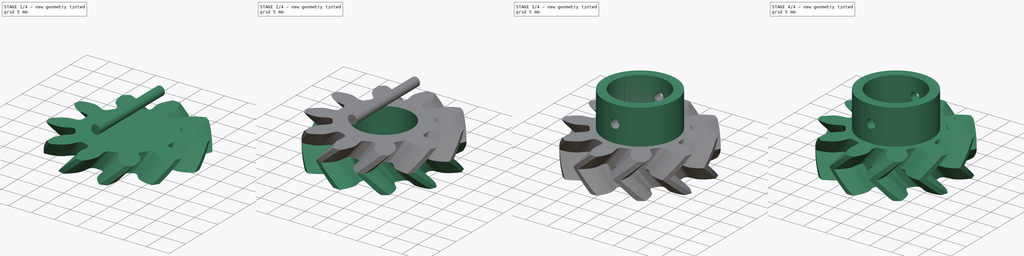
[diagram: build sequence overview — one tinted view per stage of 4, left to right]
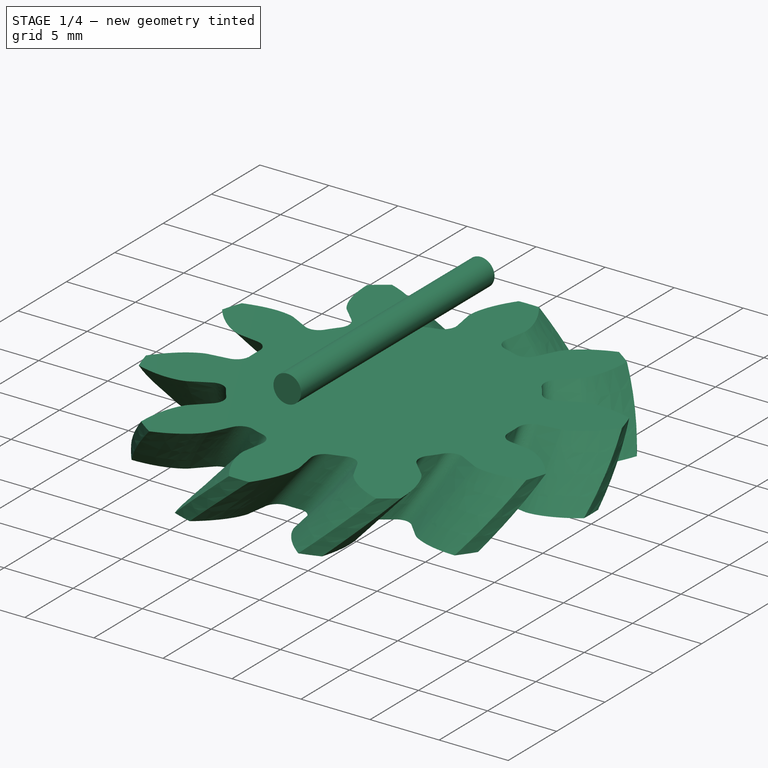
[diagram: stage 1 of 4 — iso view after this stage's code; geometry added in this stage tinted green]
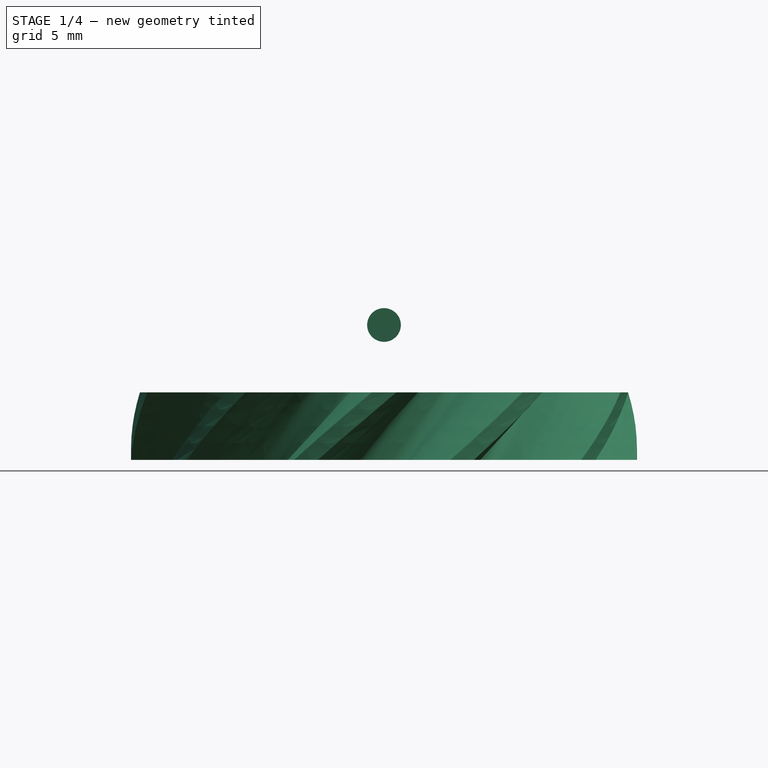
[diagram: stage 1 of 4 — front view after this stage's code; geometry added in this stage tinted green]
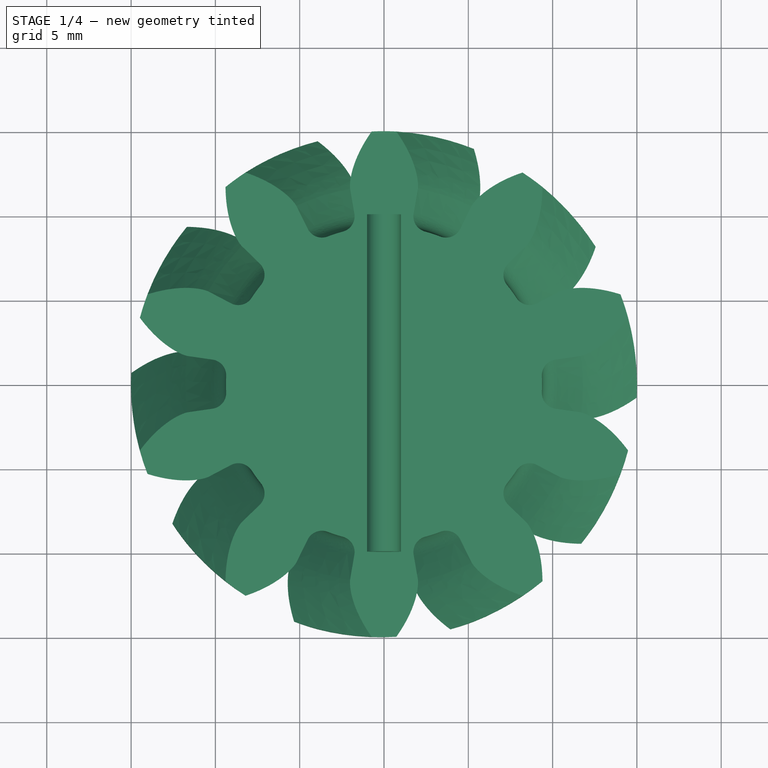
[diagram: stage 1 of 4 — top view after this stage's code; geometry added in this stage tinted green]
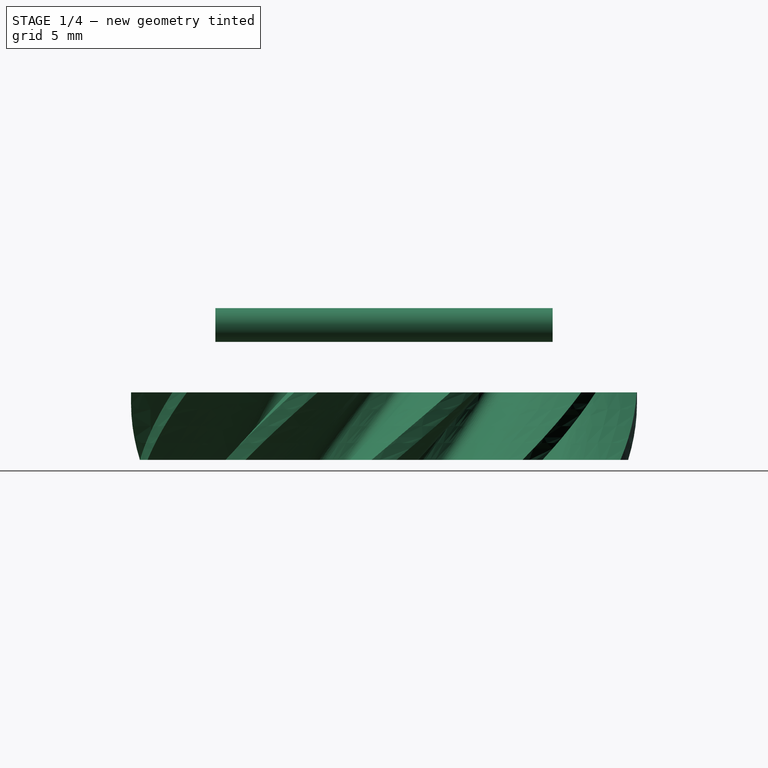
[diagram: stage 1 of 4 — right view after this stage's code; geometry added in this stage tinted green]
FCSTD DOCUMENT  (FreeCAD 0.16R6703 (Git))
Label: Chevron Gear Rotor 1mm 10th
License: FreeArt
LicenseURL: http://artlibre.org/licence/lal
objects: Part::Part2DObjectPython×5, Sketcher::SketchObject×4, Part::Cut×3, PartDesign::Pocket×2, PartDesign::Pad×2, Part::Loft×1, Part::Mirroring×1, Part::MultiFuse×1, Drawing::FeatureViewPart×1, Drawing::FeatureViewAnnotation×1, Drawing::FeaturePage×1
note: 23 computed .brp shape members not serialized (recipe doc carries the construction recipe); baked Part::Feature solids carry a one-line shape summary decoded from their .brp

FEATURE [Part::Part2DObjectPython] InvoluteGear  # Draft 2D object (typed FeaturePython)
  ExternalGear = true
  HighPrecision = true
  Modules = 2.5
  NumberOfTeeth = 10
  PressureAngle = 20
FEATURE [Part::Part2DObjectPython] Clone2D  label="Clone of InvoluteGear (2D)"  # Draft 2D object (typed FeaturePython)
  Objects = -> [InvoluteGear]
  Placement = pos=(0,0,1) rot=(0,0,1;0.07854rad)
  Scale = (1,1,1)
FEATURE [Part::Part2DObjectPython] Clone2D001  label="Clone of InvoluteGear (2D)001"  # Draft 2D object (typed FeaturePython)
  Objects = -> [InvoluteGear]
  Placement = pos=(0,0,2) rot=(0,0,1;0.15708rad)
  Scale = (1,1,1)
FEATURE [Part::Part2DObjectPython] Clone2D002  label="Clone of InvoluteGear (2D)002"  # Draft 2D object (typed FeaturePython)
  Objects = -> [InvoluteGear]
  Placement = pos=(0,0,3) rot=(0,0,1;0.235619rad)
  Scale = (1,1,1)
FEATURE [Part::Part2DObjectPython] Clone2D003  label="Clone of InvoluteGear (2D)003"  # Draft 2D object (typed FeaturePython)
  Objects = -> [InvoluteGear]
  Placement = pos=(0,0,4) rot=(0,0,1;0.314159rad)
  Scale = (1,1,1)
FEATURE [Part::Loft] Loft
  Closed = false
  Ruled = false
  Sections = -> [InvoluteGear,Clone2D,Clone2D001,Clone2D002,Clone2D003]
  Solid = true
FEATURE [Sketcher::SketchObject] Sketch003
  Placement = pos=(0,0,0) rot=(1,0,0;1.5708rad)
  sketch-geometry (1):
    g0: Circle CenterX=0 CenterY=8 CenterZ=0 NormalX=0 NormalY=0 NormalZ=1 Radius=1
  constraints (3):
    c: PointOnObject(g0,g-2)
    c: DistanceY(g-1,g0) = 8
    c: Radius(g0) = 1
FEATURE [PartDesign::Pad] Pad001
  Length = 20
  Length2 = 100
  Midplane = true
  Placement = pos=(0,0,0) rot=(1,0,0;1.5708rad)
  Sketch = -> Sketch003
  Type = 0
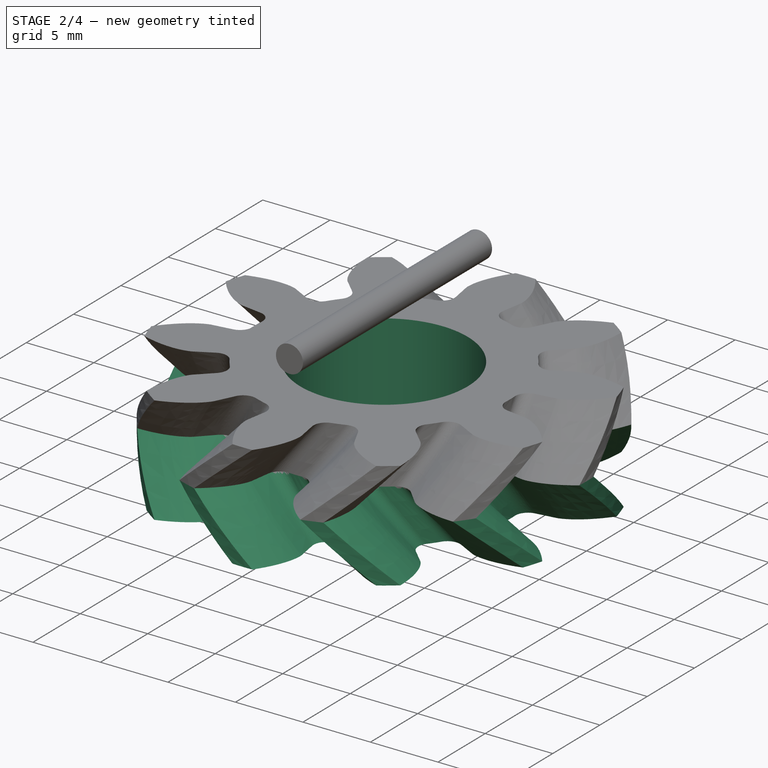
[diagram: stage 2 of 4 — iso view after this stage's code; geometry added in this stage tinted green]
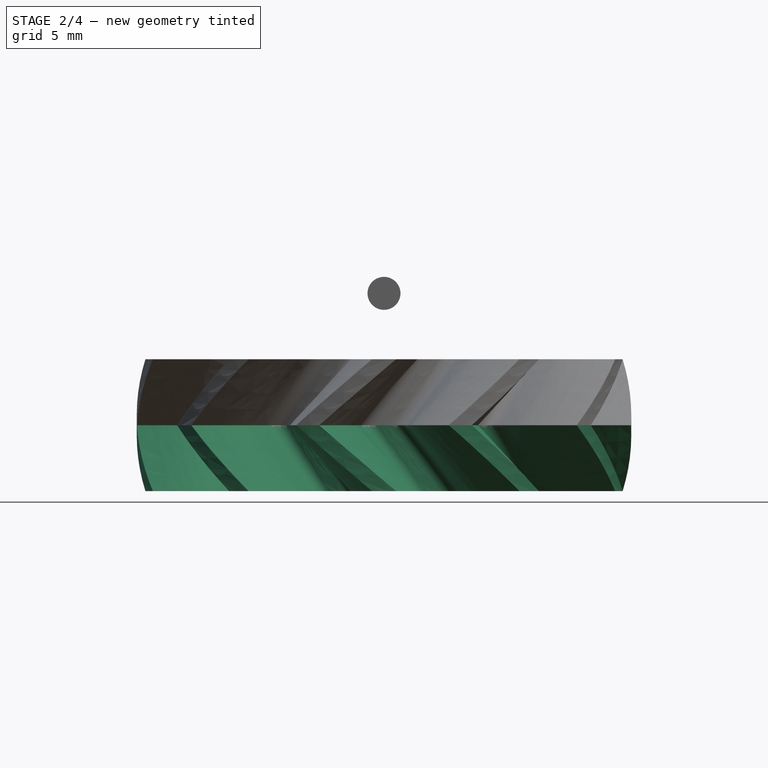
[diagram: stage 2 of 4 — front view after this stage's code; geometry added in this stage tinted green]
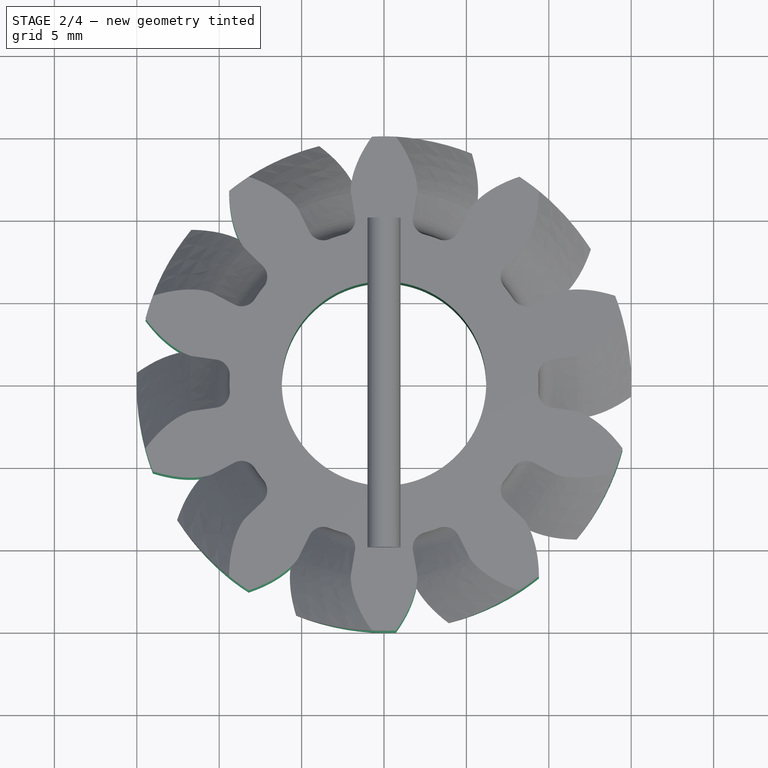
[diagram: stage 2 of 4 — top view after this stage's code; geometry added in this stage tinted green]
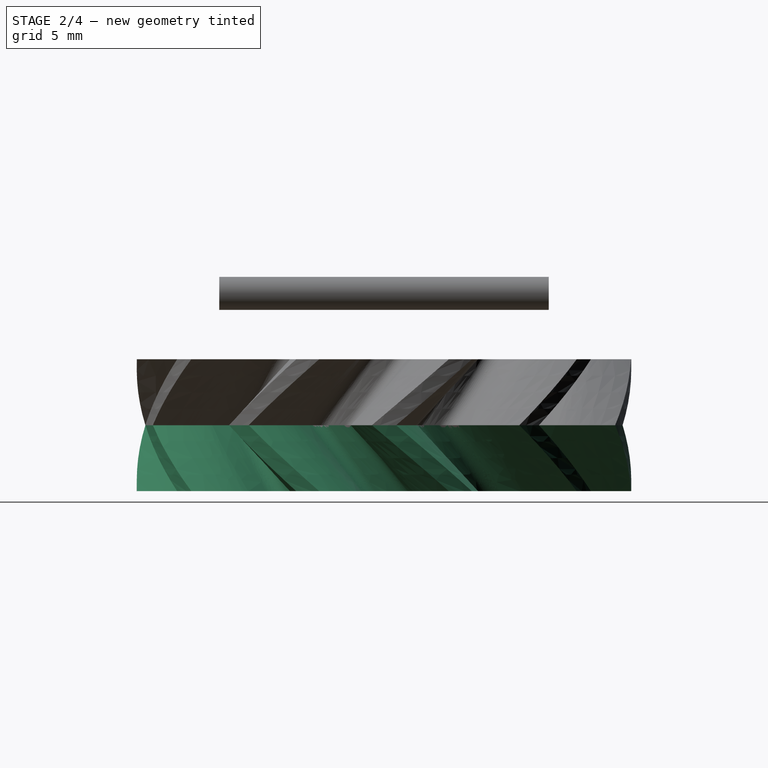
[diagram: stage 2 of 4 — right view after this stage's code; geometry added in this stage tinted green]
FEATURE [Part::Mirroring] Part__Mirroring  label="Loft (Mirror #1)"
  Base = (0,0,0)
  Normal = (0,0,1)
  Source = -> Loft
FEATURE [Part::MultiFuse] Fusion
  Shapes = -> [Part__Mirroring,Loft]
FEATURE [Sketcher::SketchObject] Sketch
  Placement = pos=(0,0,8) rot=(0,0,1;0rad)
  Support = -> Fusion [Face162]
  sketch-geometry (1):
    g0: Circle CenterX=0 CenterY=0 CenterZ=0 NormalX=0 NormalY=0 NormalZ=1 Radius=6.2
  constraints (2):
    c: Coincident(g0,g-1)
    c: Radius(g0) = 6.2
FEATURE [PartDesign::Pocket] Pocket
  Length = 16
  Sketch = -> Sketch
  Type = 0
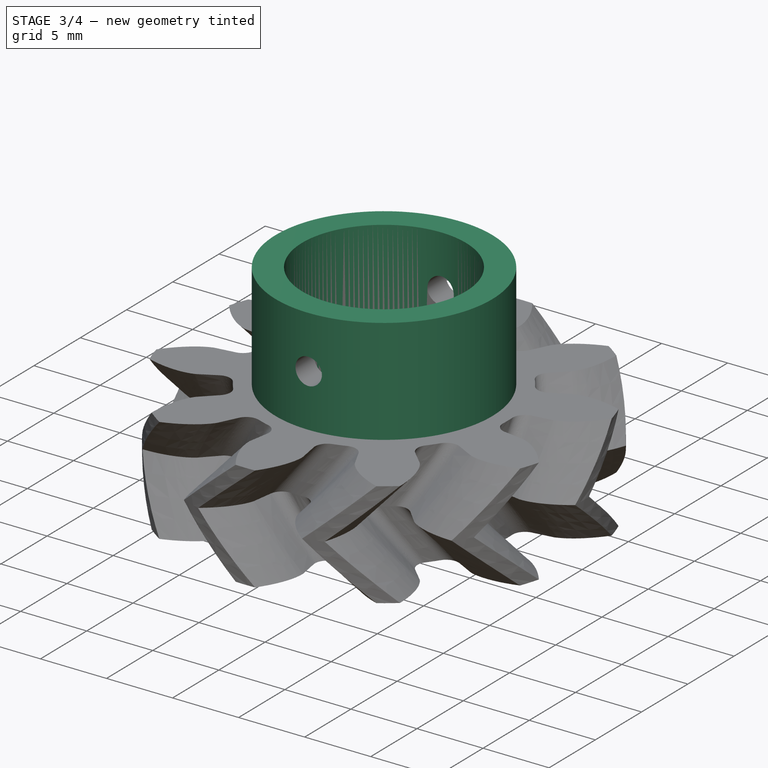
[diagram: stage 3 of 4 — iso view after this stage's code; geometry added in this stage tinted green]
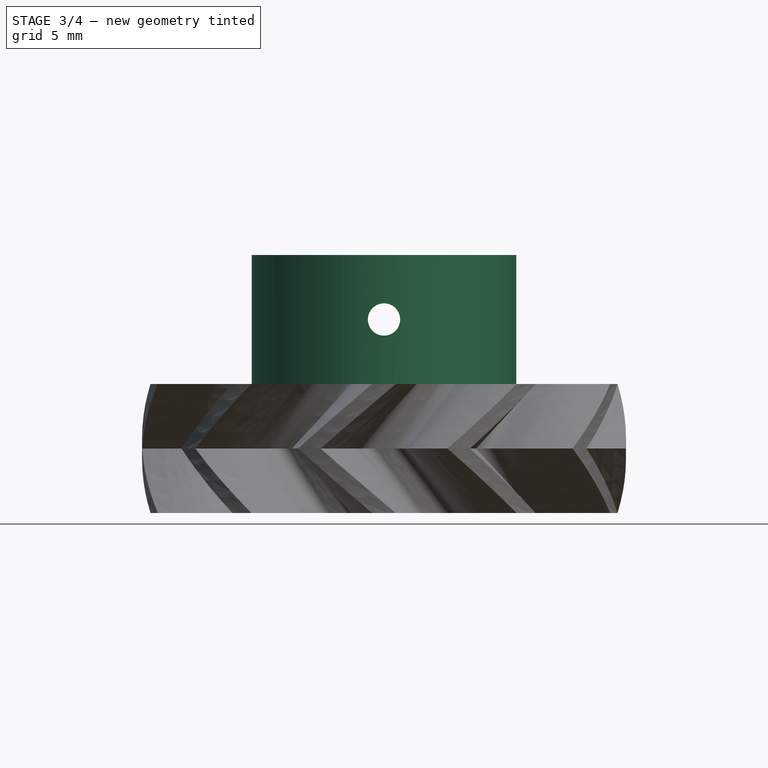
[diagram: stage 3 of 4 — front view after this stage's code; geometry added in this stage tinted green]
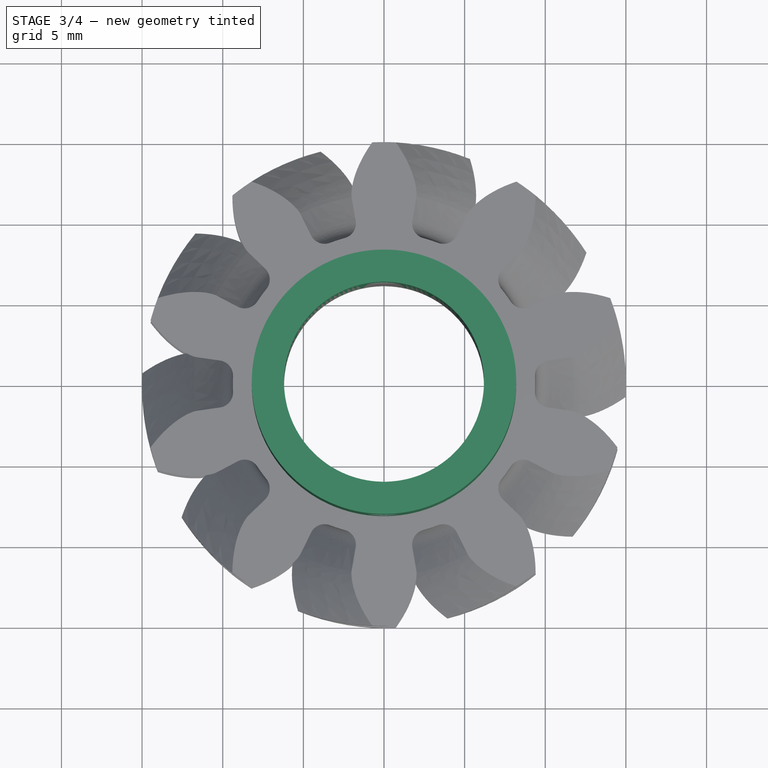
[diagram: stage 3 of 4 — top view after this stage's code; geometry added in this stage tinted green]
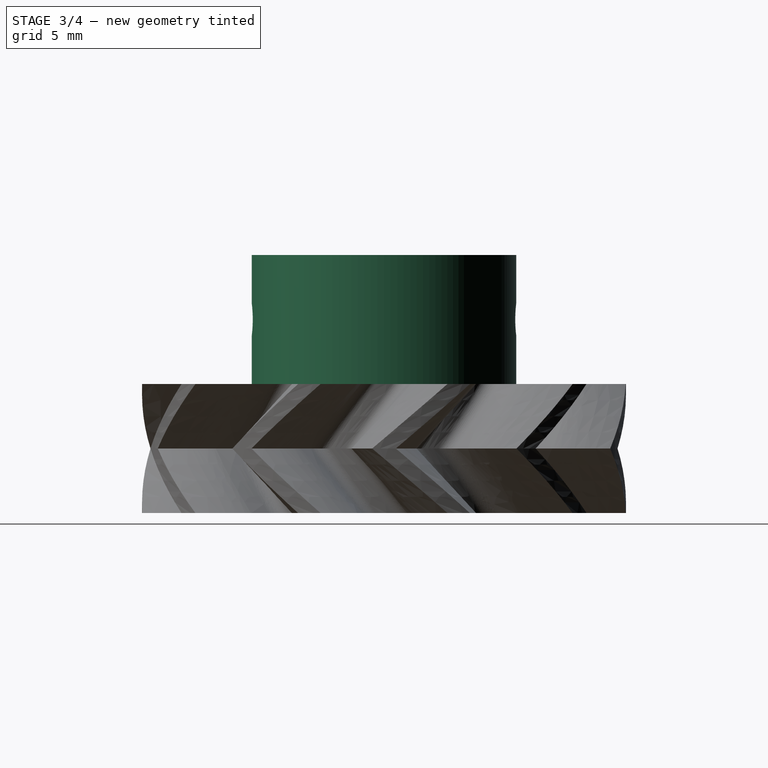
[diagram: stage 3 of 4 — right view after this stage's code; geometry added in this stage tinted green]
FEATURE [Sketcher::SketchObject] Sketch001
  Placement = pos=(0,0,4) rot=(0,0,1;0rad)
  Support = -> Pocket [Face203]
  sketch-geometry (1):
    g0: Circle CenterX=0 CenterY=0 CenterZ=0 NormalX=0 NormalY=0 NormalZ=1 Radius=8.2
  constraints (2):
    c: Coincident(g0,g-1)
    c: Radius(g0) = 8.2
FEATURE [PartDesign::Pad] Pad
  Length = 8
  Length2 = 100
  Sketch = -> Sketch001
  Type = 0
FEATURE [Sketcher::SketchObject] Sketch002
  Placement = pos=(0,0,12) rot=(0,0,1;0rad)
  Support = -> Pad [Face206]
  sketch-geometry (1):
    g0: Circle CenterX=0 CenterY=0 CenterZ=0 NormalX=0 NormalY=0 NormalZ=1 Radius=6.2
  constraints (2):
    c: Coincident(g0,g-1)
    c: Radius(g0) = 6.2
FEATURE [PartDesign::Pocket] Pocket001
  Length = 10
  Sketch = -> Sketch002
  Type = 0
FEATURE [Part::Cut] Cut002
  Base = -> Pocket001
  Tool = -> Pad001
FEATURE [Drawing::FeatureViewPart] Ortho  label="Ortho_0_0"
  Direction = (-1,0,0)
  HiddenWidth = 0.15
  LineWidth = 0.35
  Rotation = 180
  Scale = 2
  ShowHiddenLines = true
  ShowSmoothLines = true
  Source = -> Cut002
  Tolerance = 0.05
  ViewResult = <blob: 46296 chars omitted>
  Visible = true
  X = 202
  Y = 118.5
FEATURE [Drawing::FeatureViewAnnotation] Annotation
  Font = Sans
  Rotation = 0
  Scale = 7
  ViewResult = <g transform="translate(10,10) rotate(0)">\n<text id="Annotation"\n font-family="Sans"\n font-size="7"\n fill="#000000">\n<tspan x="0" dy="1em"></tspan>\n</text>\n</g>
  Visible = true
  X = 10
  Y = 10
FEATURE [Drawing::FeaturePage] Page
  EditableTexts = Eduardo R. Ludovico | 31 Maio 2016 | SUPERVISOR NAME | CHECK DATE | SCALE | WEIGHT | NUMBER | SHEET | TITLE | SUBTITLE
  Group = -> [Ortho,Annotation]
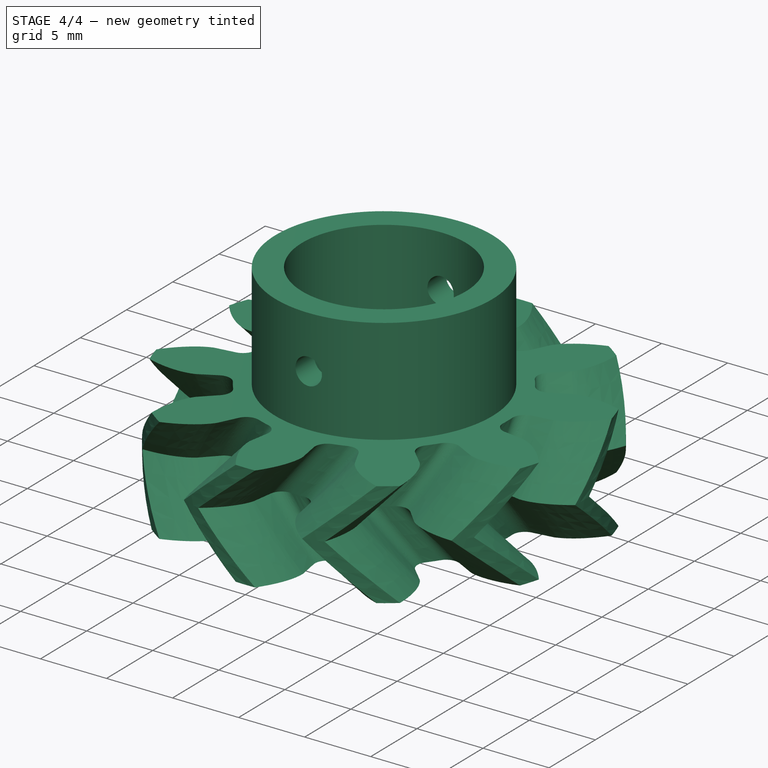
[diagram: stage 4 of 4 — iso view after this stage's code; geometry added in this stage tinted green]
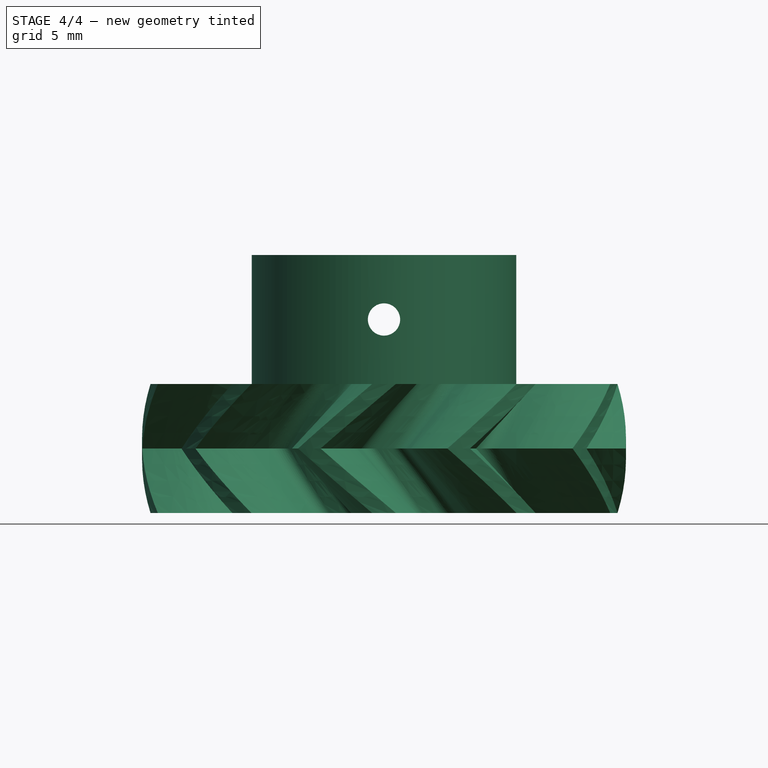
[diagram: stage 4 of 4 — front view after this stage's code; geometry added in this stage tinted green]
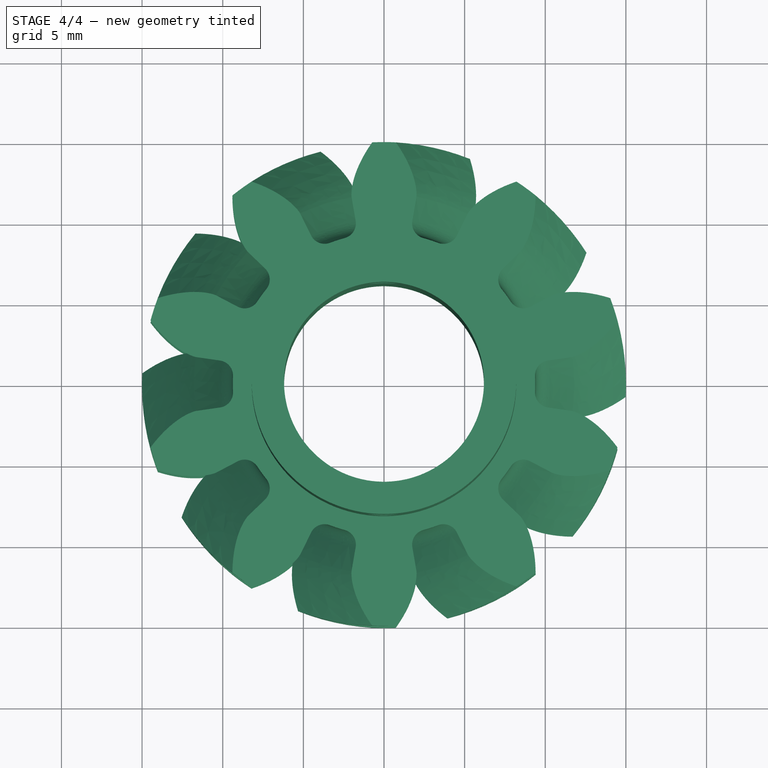
[diagram: stage 4 of 4 — top view after this stage's code; geometry added in this stage tinted green]
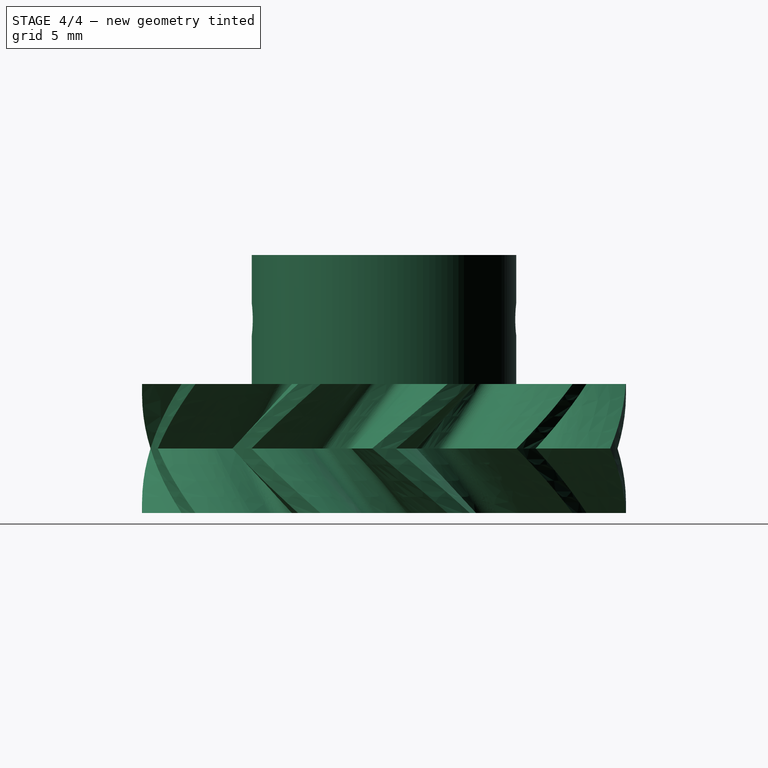
[diagram: stage 4 of 4 — right view after this stage's code; geometry added in this stage tinted green]
FEATURE [Part::Cut] Cut
  Base = -> Pocket001
  Tool = -> Pad001
FEATURE [Part::Cut] Cut001
  Base = -> Pocket001
  Tool = -> Pad001
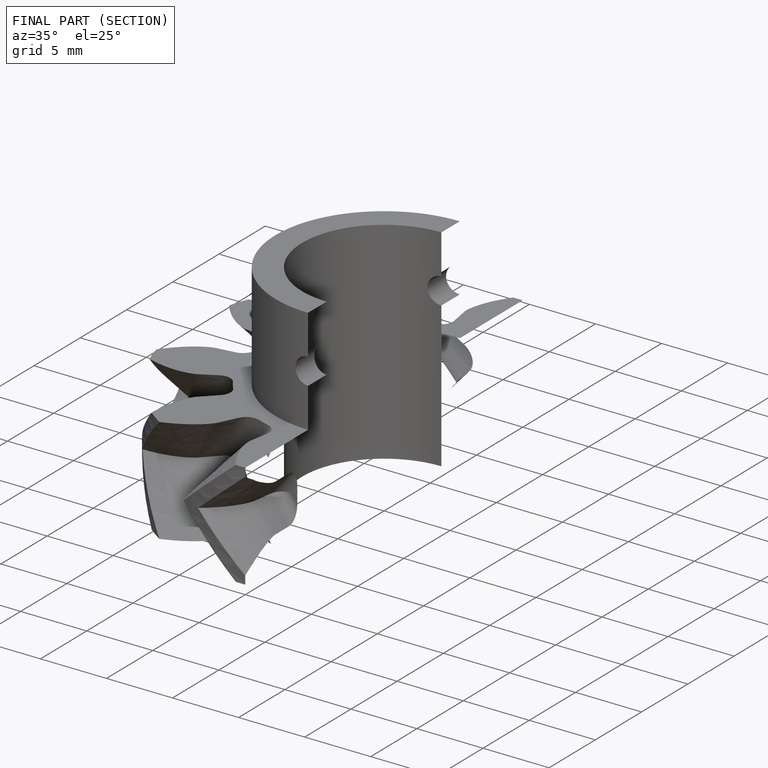
[diagram: finished part — half-section view (interior)]
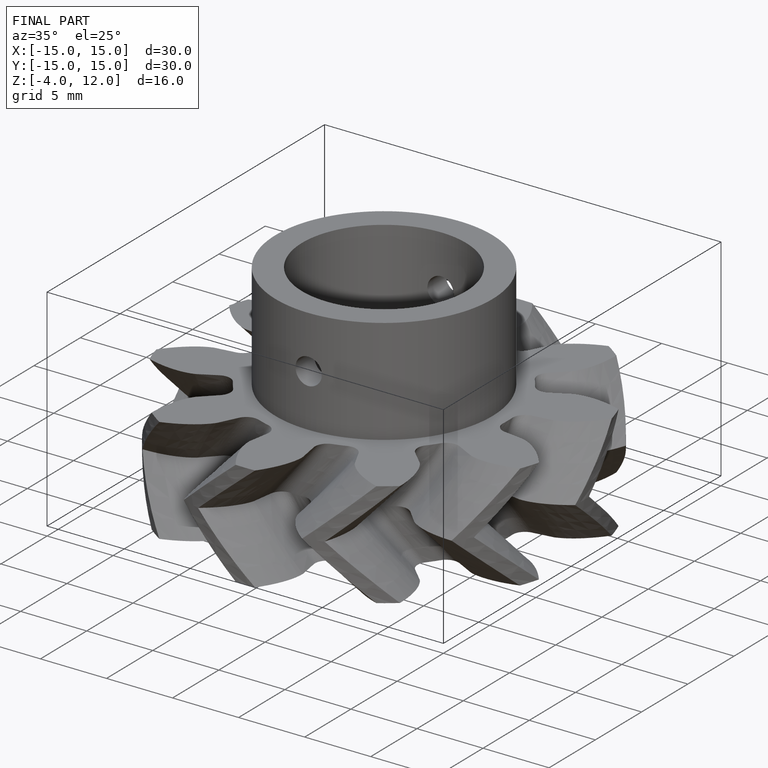
[diagram: finished part — iso view with bounding-box wireframe]
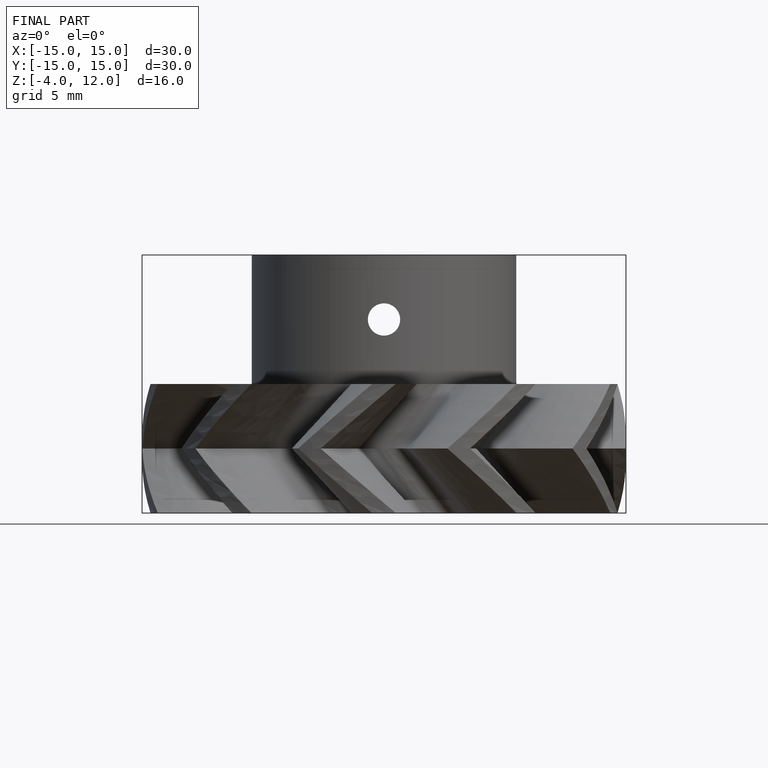
[diagram: finished part — front view with bounding-box wireframe]
